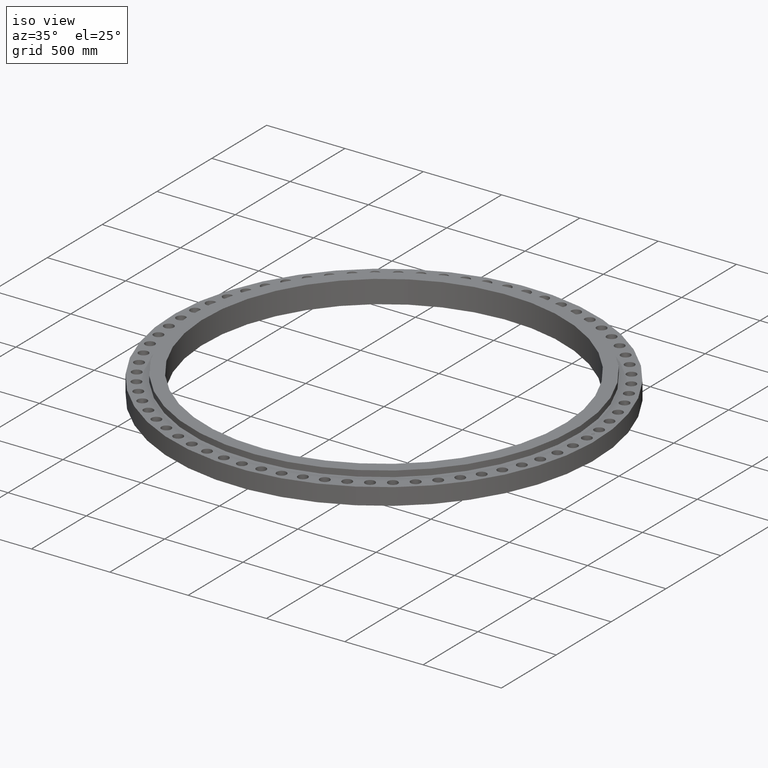
[diagram: clean part render]
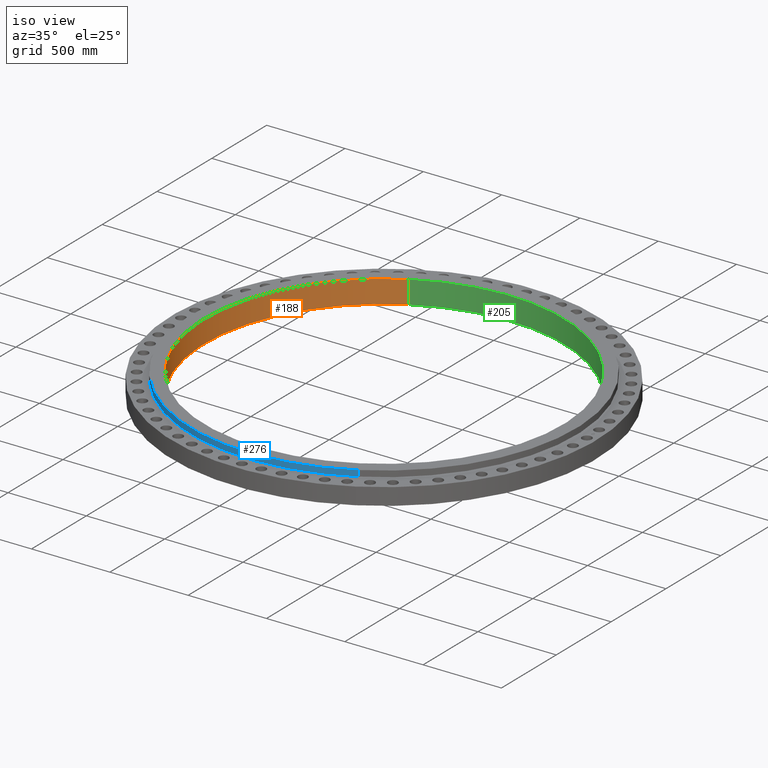
[diagram: same view with three faces highlighted in distinct colors, each labeled with its STEP entity id]
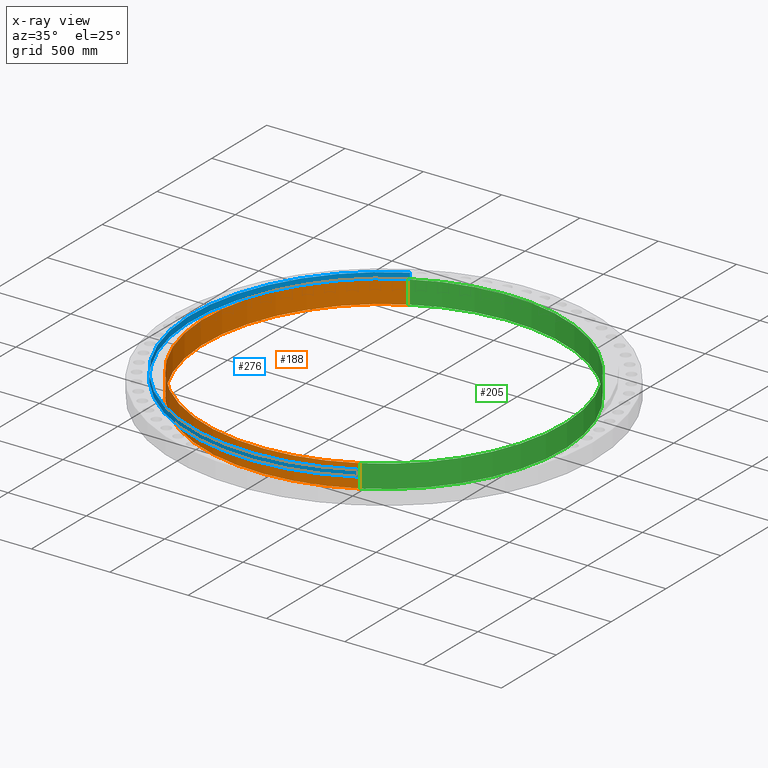
[diagram: x-ray of the same camera — body ghosted, the three highlighted faces saturated]
A machine part, iso view with three faces highlighted in distinct colors.
The next image is the same camera in x-ray (body ghosted, the three faces saturated) — at least one of them is partly hidden behind the body in this view.
Their STEP definitions:

[orange] entity #188 — the highlighted cylindrical surface (partial cylindrical patch) has radius 1145.41 mm, axis along (0, 0, 1).
#152=AXIS2_PLACEMENT_3D('Cylinder Axis2P3D',#149,#150,#151) ;
#165=AXIS2_PLACEMENT_3D('Circle Axis2P3D',#163,#164,$) ;
#179=AXIS2_PLACEMENT_3D('Circle Axis2P3D',#177,#178,$) ;
#149=CARTESIAN_POINT('Axis2P3D Location',(0.,0.,2.87500000001)) ;
#154=CARTESIAN_POINT('Line Origine',(21.6196946634,-39.5745856286,2.87500000001)) ;
#158=CARTESIAN_POINT('Vertex',(21.6196946634,-39.5745856286,5.75000000002)) ;
#160=CARTESIAN_POINT('Vertex',(21.6196946634,-39.5745856286,0.)) ;
#163=CARTESIAN_POINT('Axis2P3D Location',(0.,0.,0.)) ;
#167=CARTESIAN_POINT('Vertex',(-21.6196946634,39.5745856286,0.)) ;
#170=CARTESIAN_POINT('Line Origine',(-21.6196946634,39.5745856286,2.87500000001)) ;
#174=CARTESIAN_POINT('Vertex',(-21.6196946634,39.5745856286,5.75000000002)) ;
#177=CARTESIAN_POINT('Axis2P3D Location',(0.,0.,5.75000000002)) ;
#150=DIRECTION('Axis2P3D Direction',(0.,0.,0.0393700787402)) ;
#151=DIRECTION('Axis2P3D XDirection',(0.0188750212049,-0.0345504945626,0.)) ;
#155=DIRECTION('Vector Direction',(0.,0.,0.0393700787402)) ;
#164=DIRECTION('Axis2P3D Direction',(0.,0.,0.0393700787402)) ;
#171=DIRECTION('Vector Direction',(0.,0.,0.0393700787402)) ;
#178=DIRECTION('Axis2P3D Direction',(0.,0.,0.0393700787402)) ;
#156=VECTOR('Line Direction',#155,0.0393700787402) ;
#172=VECTOR('Line Direction',#171,0.0393700787402) ;
#183=ORIENTED_EDGE('',*,*,#162,.T.) ;
#184=ORIENTED_EDGE('',*,*,#169,.F.) ;
#185=ORIENTED_EDGE('',*,*,#176,.F.) ;
#186=ORIENTED_EDGE('',*,*,#181,.T.) ;
#188=ADVANCED_FACE('PartBody',(#187),#153,.F.) ;
#166=CIRCLE('generated circle',#165,45.0950000002) ;
#180=CIRCLE('generated circle',#179,45.0950000002) ;
#153=CYLINDRICAL_SURFACE('generated cylinder',#152,45.0950000002) ;
#162=EDGE_CURVE('',#159,#161,#157,.F.) ;
#169=EDGE_CURVE('',#168,#161,#166,.T.) ;
#176=EDGE_CURVE('',#175,#168,#173,.F.) ;
#181=EDGE_CURVE('',#175,#159,#180,.T.) ;
#182=EDGE_LOOP('',(#183,#184,#185,#186)) ;
#187=FACE_OUTER_BOUND('',#182,.T.) ;
#157=LINE('Line',#154,#156) ;
#173=LINE('Line',#170,#172) ;
#159=VERTEX_POINT('',#158) ;
#161=VERTEX_POINT('',#160) ;
#168=VERTEX_POINT('',#167) ;
#175=VERTEX_POINT('',#174) ;

[blue] entity #276 — the highlighted cylindrical surface (partial cylindrical patch) has radius 1228.72 mm, axis along (0, 0, 1).
#222=AXIS2_PLACEMENT_3D('Circle Axis2P3D',#220,#221,$) ;
#237=AXIS2_PLACEMENT_3D('Cylinder Axis2P3D',#234,#235,#236) ;
#267=AXIS2_PLACEMENT_3D('Circle Axis2P3D',#265,#266,$) ;
#215=CARTESIAN_POINT('Vertex',(23.1922104301,-42.4530564316,5.75000000002)) ;
#217=CARTESIAN_POINT('Vertex',(-23.1922104301,42.4530564316,5.75000000002)) ;
#220=CARTESIAN_POINT('Axis2P3D Location',(0.,0.,5.75000000002)) ;
#234=CARTESIAN_POINT('Axis2P3D Location',(0.,0.,2.87500000001)) ;
#239=CARTESIAN_POINT('Line Origine',(-23.1922104301,42.4530564316,5.00000000002)) ;
#243=CARTESIAN_POINT('Vertex',(-23.1922104301,42.4530564316,4.25000000002)) ;
#246=CARTESIAN_POINT('Line Origine',(23.1922104301,-42.4530564316,5.00000000002)) ;
#250=CARTESIAN_POINT('Vertex',(23.1922104301,-42.4530564316,4.25000000002)) ;
#265=CARTESIAN_POINT('Axis2P3D Location',(0.,0.,4.25000000002)) ;
#221=DIRECTION('Axis2P3D Direction',(0.,0.,0.0393700787402)) ;
#235=DIRECTION('Axis2P3D Direction',(0.,0.,0.0393700787402)) ;
#236=DIRECTION('Axis2P3D XDirection',(-0.0188750212049,0.0345504945626,0.)) ;
#240=DIRECTION('Vector Direction',(0.,0.,0.0393700787402)) ;
#247=DIRECTION('Vector Direction',(0.,0.,0.0393700787402)) ;
#266=DIRECTION('Axis2P3D Direction',(0.,0.,0.0393700787402)) ;
#241=VECTOR('Line Direction',#240,0.0393700787402) ;
#248=VECTOR('Line Direction',#247,0.0393700787402) ;
#271=ORIENTED_EDGE('',*,*,#252,.T.) ;
#272=ORIENTED_EDGE('',*,*,#224,.F.) ;
#273=ORIENTED_EDGE('',*,*,#245,.F.) ;
#274=ORIENTED_EDGE('',*,*,#269,.T.) ;
#276=ADVANCED_FACE('PartBody',(#275),#238,.T.) ;
#223=CIRCLE('generated circle',#222,48.3750000002) ;
#268=CIRCLE('generated circle',#267,48.3750000002) ;
#238=CYLINDRICAL_SURFACE('generated cylinder',#237,48.3750000002) ;
#224=EDGE_CURVE('',#218,#216,#223,.T.) ;
#245=EDGE_CURVE('',#244,#218,#242,.T.) ;
#252=EDGE_CURVE('',#251,#216,#249,.T.) ;
#269=EDGE_CURVE('',#244,#251,#268,.T.) ;
#270=EDGE_LOOP('',(#271,#272,#273,#274)) ;
#275=FACE_OUTER_BOUND('',#270,.T.) ;
#242=LINE('Line',#239,#241) ;
#249=LINE('Line',#246,#248) ;
#216=VERTEX_POINT('',#215) ;
#218=VERTEX_POINT('',#217) ;
#244=VERTEX_POINT('',#243) ;
#251=VERTEX_POINT('',#250) ;

[green] entity #205 — the highlighted cylindrical surface (partial cylindrical patch) has radius 1145.41 mm, axis along (0, 0, 1).
#152=AXIS2_PLACEMENT_3D('Cylinder Axis2P3D',#149,#150,#151) ;
#191=AXIS2_PLACEMENT_3D('Circle Axis2P3D',#189,#190,$) ;
#196=AXIS2_PLACEMENT_3D('Circle Axis2P3D',#194,#195,$) ;
#149=CARTESIAN_POINT('Axis2P3D Location',(0.,0.,2.87500000001)) ;
#154=CARTESIAN_POINT('Line Origine',(21.6196946634,-39.5745856286,2.87500000001)) ;
#158=CARTESIAN_POINT('Vertex',(21.6196946634,-39.5745856286,5.75000000002)) ;
#160=CARTESIAN_POINT('Vertex',(21.6196946634,-39.5745856286,0.)) ;
#167=CARTESIAN_POINT('Vertex',(-21.6196946634,39.5745856286,0.)) ;
#170=CARTESIAN_POINT('Line Origine',(-21.6196946634,39.5745856286,2.87500000001)) ;
#174=CARTESIAN_POINT('Vertex',(-21.6196946634,39.5745856286,5.75000000002)) ;
#189=CARTESIAN_POINT('Axis2P3D Location',(0.,0.,0.)) ;
#194=CARTESIAN_POINT('Axis2P3D Location',(0.,0.,5.75000000002)) ;
#150=DIRECTION('Axis2P3D Direction',(0.,0.,0.0393700787402)) ;
#151=DIRECTION('Axis2P3D XDirection',(0.0188750212049,-0.0345504945626,0.)) ;
#155=DIRECTION('Vector Direction',(0.,0.,0.0393700787402)) ;
#171=DIRECTION('Vector Direction',(0.,0.,0.0393700787402)) ;
#190=DIRECTION('Axis2P3D Direction',(0.,0.,0.0393700787402)) ;
#195=DIRECTION('Axis2P3D Direction',(0.,0.,0.0393700787402)) ;
#156=VECTOR('Line Direction',#155,0.0393700787402) ;
#172=VECTOR('Line Direction',#171,0.0393700787402) ;
#200=ORIENTED_EDGE('',*,*,#176,.T.) ;
#201=ORIENTED_EDGE('',*,*,#193,.F.) ;
#202=ORIENTED_EDGE('',*,*,#162,.F.) ;
#203=ORIENTED_EDGE('',*,*,#198,.T.) ;
#205=ADVANCED_FACE('PartBody',(#204),#153,.F.) ;
#192=CIRCLE('generated circle',#191,45.0950000002) ;
#197=CIRCLE('generated circle',#196,45.0950000002) ;
#153=CYLINDRICAL_SURFACE('generated cylinder',#152,45.0950000002) ;
#162=EDGE_CURVE('',#159,#161,#157,.F.) ;
#176=EDGE_CURVE('',#175,#168,#173,.F.) ;
#193=EDGE_CURVE('',#161,#168,#192,.T.) ;
#198=EDGE_CURVE('',#159,#175,#197,.T.) ;
#199=EDGE_LOOP('',(#200,#201,#202,#203)) ;
#204=FACE_OUTER_BOUND('',#199,.T.) ;
#157=LINE('Line',#154,#156) ;
#173=LINE('Line',#170,#172) ;
#159=VERTEX_POINT('',#158) ;
#161=VERTEX_POINT('',#160) ;
#168=VERTEX_POINT('',#167) ;
#175=VERTEX_POINT('',#174) ;